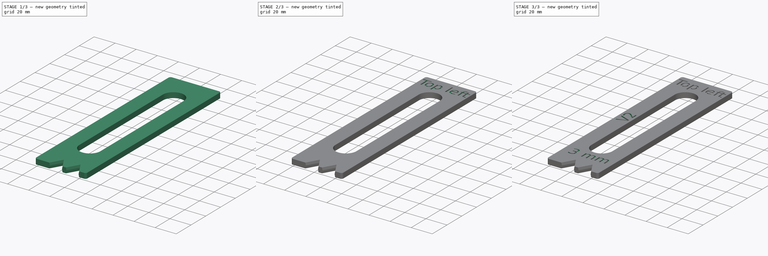
[diagram: build sequence overview — one tinted view per stage of 3, left to right]
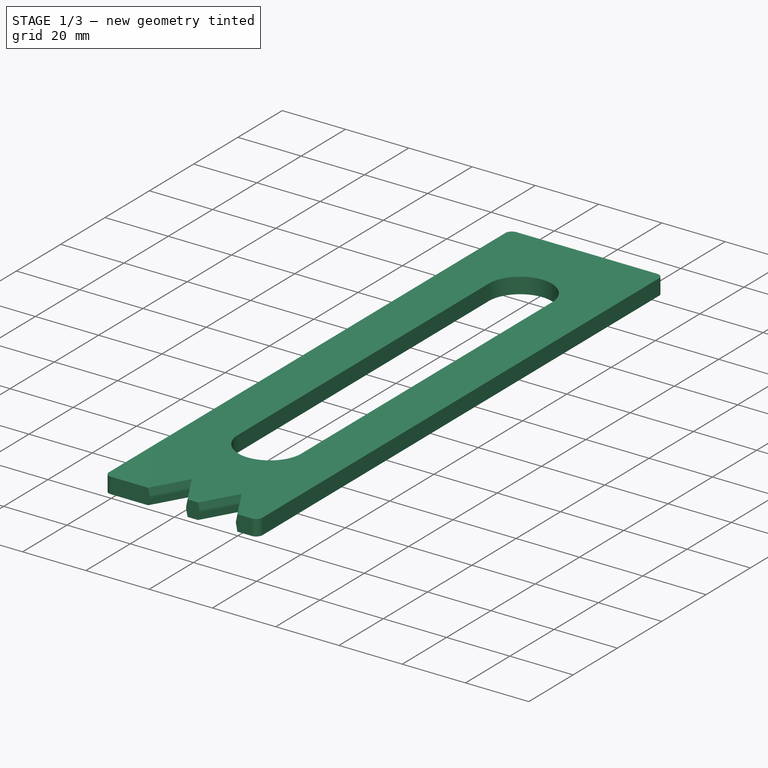
[diagram: stage 1 of 3 — iso view after this stage's code; geometry added in this stage tinted green]
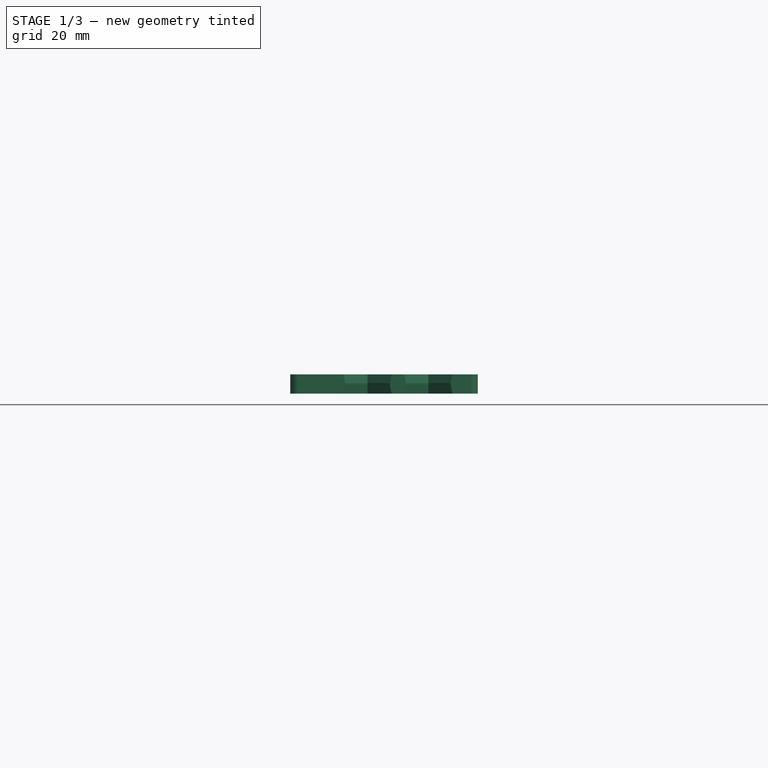
[diagram: stage 1 of 3 — front view after this stage's code; geometry added in this stage tinted green]
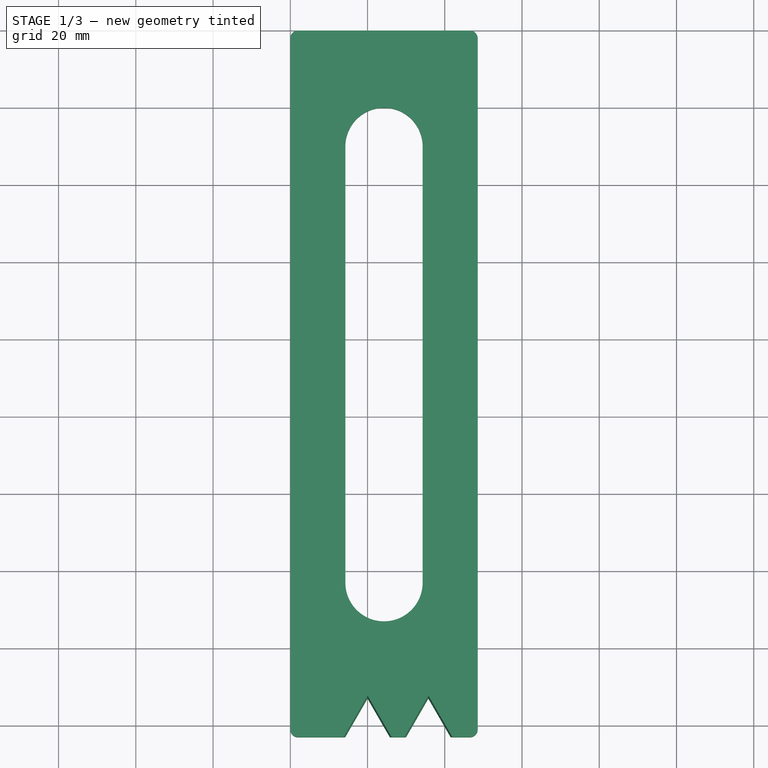
[diagram: stage 1 of 3 — top view after this stage's code; geometry added in this stage tinted green]
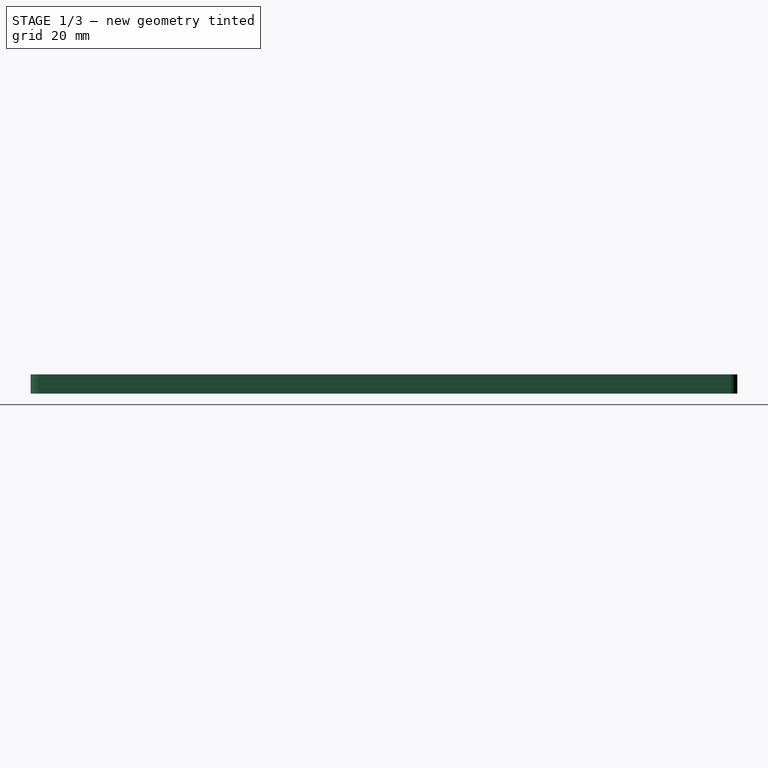
[diagram: stage 1 of 3 — right view after this stage's code; geometry added in this stage tinted green]
FCSTD DOCUMENT  (FreeCAD 0.19R24291 (Git))
Label: Small enclosure, 3mm mains block
License: All rights reserved
LicenseURL: http://en.wikipedia.org/wiki/All_rights_reserved
objects: Part::Part2DObjectPython×3, PartDesign::Pocket×3, Sketcher::SketchObject×1, PartDesign::Pad×1, PartDesign::Chamfer×1, PartDesign::Body×1
note: 15 computed .brp shape members not serialized (recipe doc carries the construction recipe); baked Part::Feature solids carry a one-line shape summary decoded from their .brp

FEATURE [Sketcher::SketchObject] Sketch
  FullyConstrained = true
  MapMode = 5
  Support = -> [XY_Plane]
  sketch-geometry (20):
    g0: LineSegment StartX=2 StartY=0 StartZ=0 EndX=46.5235 EndY=0 EndZ=0
    g1: LineSegment StartX=48.5235 StartY=-2 StartZ=0 EndX=48.5235 EndY=-181 EndZ=0
    g2: LineSegment StartX=0 StartY=-2 StartZ=0 EndX=0 EndY=-181 EndZ=0
    g3: LineSegment StartX=2 StartY=-183 StartZ=0 EndX=14.2265 EndY=-183 EndZ=0
    g4: LineSegment StartX=14.2265 StartY=-183 StartZ=0 EndX=20 EndY=-173 EndZ=0
    g5: LineSegment StartX=20 StartY=-173 StartZ=0 EndX=25.7735 EndY=-183 EndZ=0
    g6: LineSegment StartX=25.7735 StartY=-183 StartZ=0 EndX=29.9765 EndY=-183 EndZ=0
    g7: LineSegment StartX=29.9765 StartY=-183 StartZ=0 EndX=35.75 EndY=-173 EndZ=0
    g8: LineSegment StartX=35.75 StartY=-173 StartZ=0 EndX=41.5235 EndY=-183 EndZ=0
    g9: LineSegment StartX=41.5235 StartY=-183 StartZ=0 EndX=46.5235 EndY=-183 EndZ=0
    g10: ArcOfCircle CenterX=2 CenterY=-2 CenterZ=0 NormalX=0 NormalY=0 NormalZ=1 AngleXU=0 Radius=2 StartAngle=1.5708 EndAngle=3.14159
    g11: ArcOfCircle CenterX=46.5235 CenterY=-2 CenterZ=0 NormalX=0 NormalY=0 NormalZ=1 AngleXU=0 Radius=2 StartAngle=0 EndAngle=1.5708
    g12: ArcOfCircle CenterX=46.5235 CenterY=-181 CenterZ=0 NormalX=0 NormalY=0 NormalZ=1 AngleXU=0 Radius=2 StartAngle=4.71239 EndAngle=6.28319
    g13: LineSegment StartX=24.2618 StartY=0 StartZ=0 EndX=24.2618 EndY=-183 EndZ=0
    g14: GeomPoint X=48.5235 Y=0 Z=0
    g15: ArcOfCircle CenterX=24.2618 CenterY=-30 CenterZ=0 NormalX=0 NormalY=0 NormalZ=1 AngleXU=0 Radius=10 StartAngle=0 EndAngle=3.14159
    g16: ArcOfCircle CenterX=24.2618 CenterY=-143 CenterZ=0 NormalX=0 NormalY=0 NormalZ=1 AngleXU=0 Radius=10 StartAngle=3.14159 EndAngle=6.28319
    g17: LineSegment StartX=14.2618 StartY=-30 StartZ=0 EndX=14.2618 EndY=-143 EndZ=0
    g18: LineSegment StartX=34.2618 StartY=-30 StartZ=0 EndX=34.2618 EndY=-143 EndZ=0
    g19: ArcOfCircle CenterX=2 CenterY=-181 CenterZ=0 NormalX=0 NormalY=0 NormalZ=1 AngleXU=0 Radius=2 StartAngle=3.14159 EndAngle=4.71239
  constraints (53):
    c: Horizontal(g0)
    c: Vertical(g1)
    c: Vertical(g2)
    c: Horizontal(g3)
    c: Coincident(g4,g3)
    c: Coincident(g5,g4)
    c: Coincident(g6,g5)
    c: Horizontal(g6)
    c: Coincident(g8,g7)
    c: Coincident(g9,g8)
    c: Horizontal(g9)
    c: Tangent(g0,g10) = 1.5708
    c: Tangent(g2,g10) = -1.5708
    c: Horizontal(g-1,g0)
    c: Vertical(g-1,g2)
    c: Horizontal(g3,g5)
    c: Horizontal(g8,g6)
    c: Coincident(g7,g6)
    c: Equal(g4,g5)
    c: Equal(g5,g7)
    c: Equal(g7,g8)
    c: Angle(g4,g5) = 1.0472
    c: Angle(g7,g8) = 1.0472
    c: DistanceY(g3,g4) = 10
    c: DistanceY(g4,g-1) = 173
    c: DistanceX(g4,g7) = 15.75
    c: Tangent(g0,g11) = 1.5708
    c: Tangent(g1,g11) = 1.5708
    c: Tangent(g1,g12) = 1.5708
    c: Tangent(g9,g12) = -1.5708
    c: Radius(g11) = 2
    c: Radius(g12) = 2
    c: Vertical(g13)
    c: Horizontal(g13,g-1)
    c: Vertical(g14,g1)
    c: Symmetric(g-1,g14,g13)
    c: Tangent(g15,g18) = 1.5708
    c: Tangent(g15,g17) = -1.5708
    c: Tangent(g17,g16) = -1.5708
    c: Tangent(g18,g16) = 1.5708
    c: Vertical(g17)
    c: Equal(g15,g16)
    c: PointOnObject(g15,g13)
    c: DistanceX(g15,g15) = 20
    c: DistanceY(g15,g13) = 30
    c: DistanceY(g4,g16) = 30
    c: Distance(g9) = 5
    c: Equal(g11,g10)
    c: Tangent(g2,g19) = -1.5708
    c: Tangent(g3,g19) = -1.5708
    c: Equal(g12,g19)
    c: DistanceX(g-1,g4) = 20
    c: Horizontal(g13,g5)
FEATURE [PartDesign::Pad] Pad
  Direction = (1,1,1)
  Length = 5
  Length2 = 100
  Profile = -> Sketch
  Type = 0
FEATURE [PartDesign::Chamfer] Chamfer
  Angle = 80
  Base = -> Pad [Edge34,Edge31,Edge25,Edge22,Edge21,Edge24,Edge30,Edge33]
  BaseFeature = -> Pad
  ChamferType = 2
  FlipDirection = true
  Size = 0.4
  Size2 = 1
  SupportTransform = false
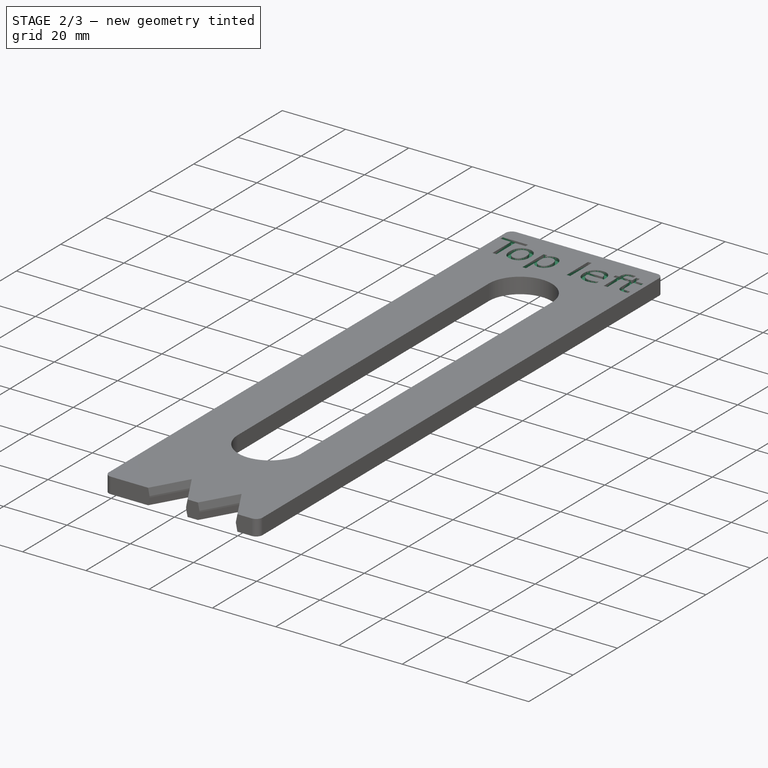
[diagram: stage 2 of 3 — iso view after this stage's code; geometry added in this stage tinted green]
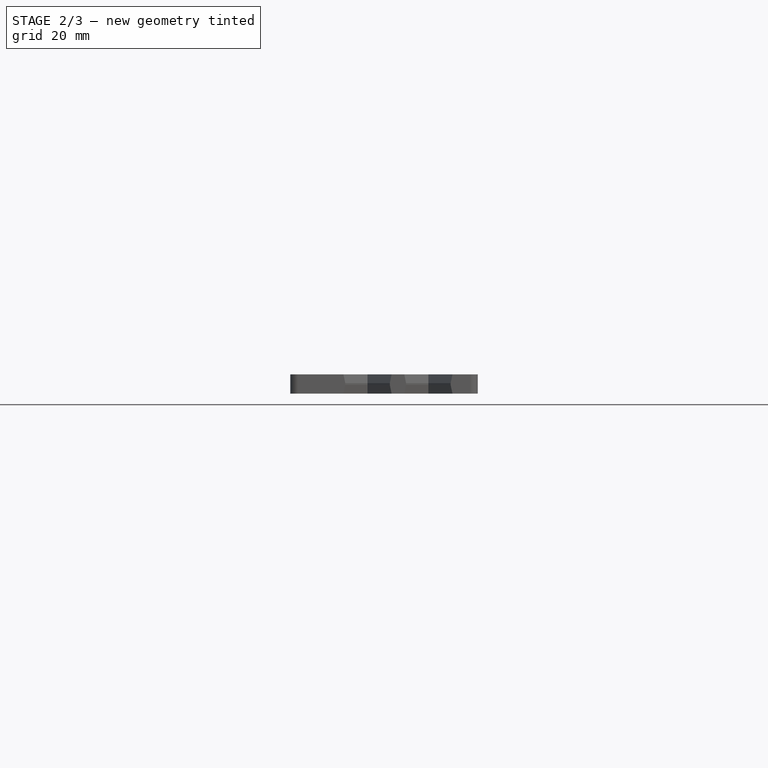
[diagram: stage 2 of 3 — front view after this stage's code; geometry added in this stage tinted green]
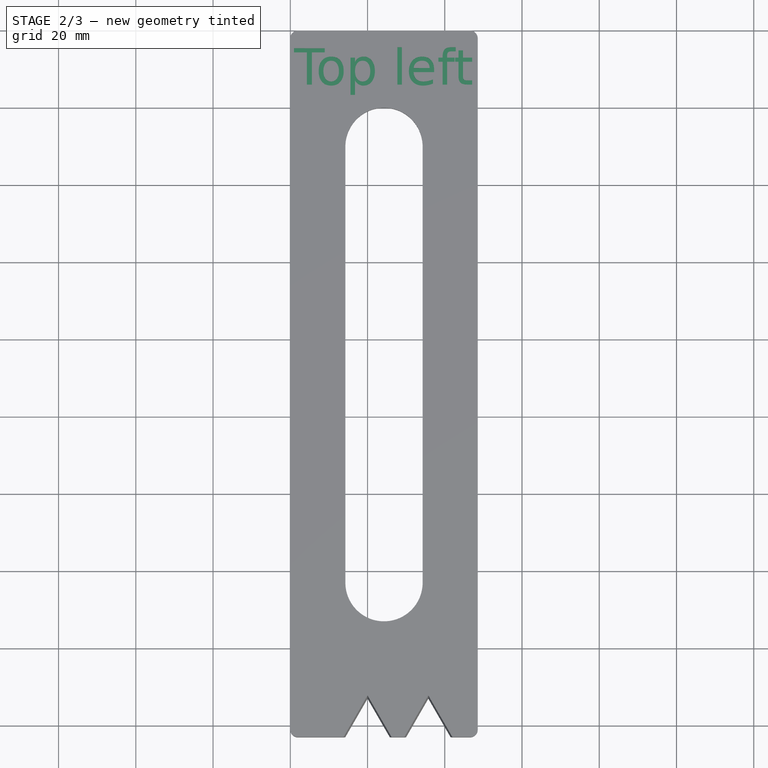
[diagram: stage 2 of 3 — top view after this stage's code; geometry added in this stage tinted green]
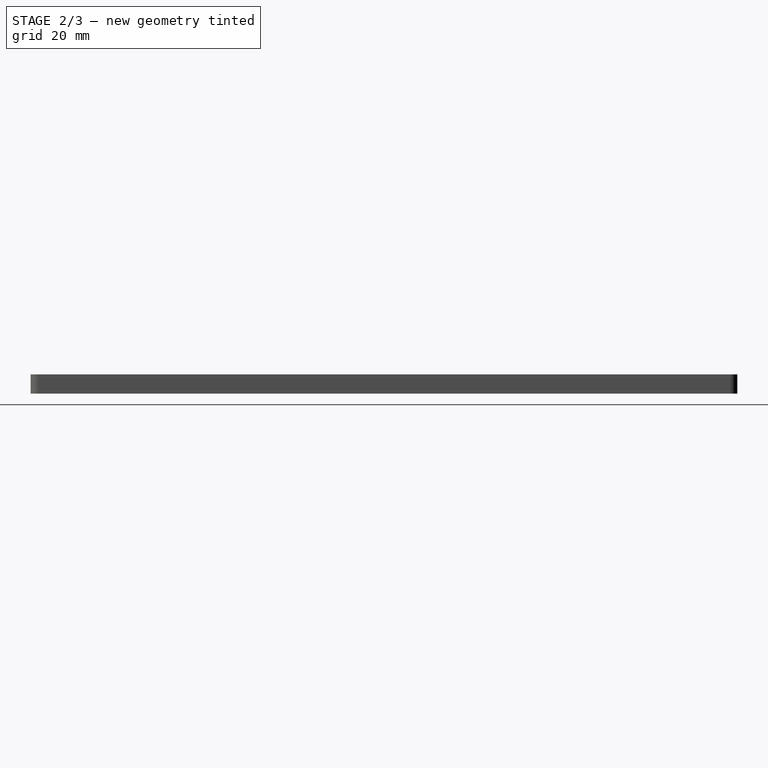
[diagram: stage 2 of 3 — right view after this stage's code; geometry added in this stage tinted green]
FEATURE [Part::Part2DObjectPython] ShapeString  # Draft 2D object (typed FeaturePython)
  FontFile = <path>
  Placement = pos=(1,-14,5) rot=(0,0,1;0rad)
  Size = 10
  String = Top left
  Tracking = 0
FEATURE [Part::Part2DObjectPython] ShapeString001  # Draft 2D object (typed FeaturePython)
  FontFile = <path>
  Placement = pos=(6,-165,5) rot=(0,0,1;0rad)
  Size = 10
  String = 3 mm
  Tracking = 0
FEATURE [PartDesign::Pocket] Pocket
  BaseFeature = -> Chamfer
  Length = 1
  Length2 = 100
  Profile = -> ShapeString
  Type = 0
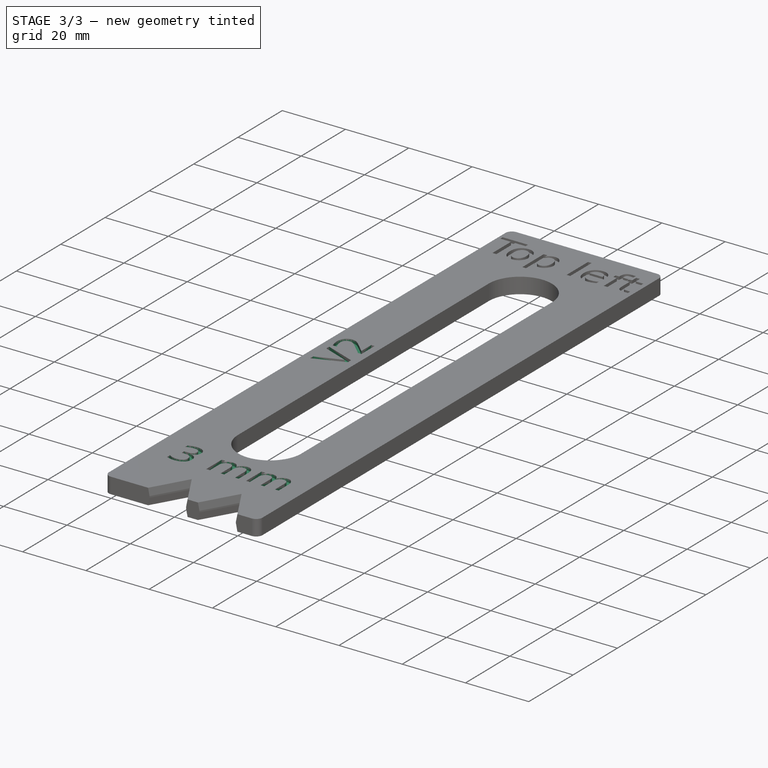
[diagram: stage 3 of 3 — iso view after this stage's code; geometry added in this stage tinted green]
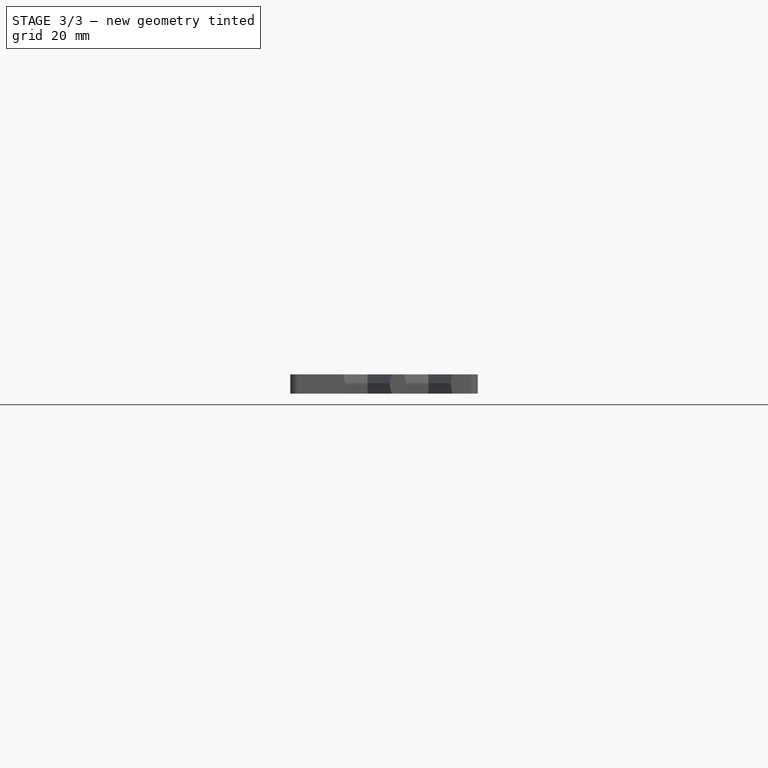
[diagram: stage 3 of 3 — front view after this stage's code; geometry added in this stage tinted green]
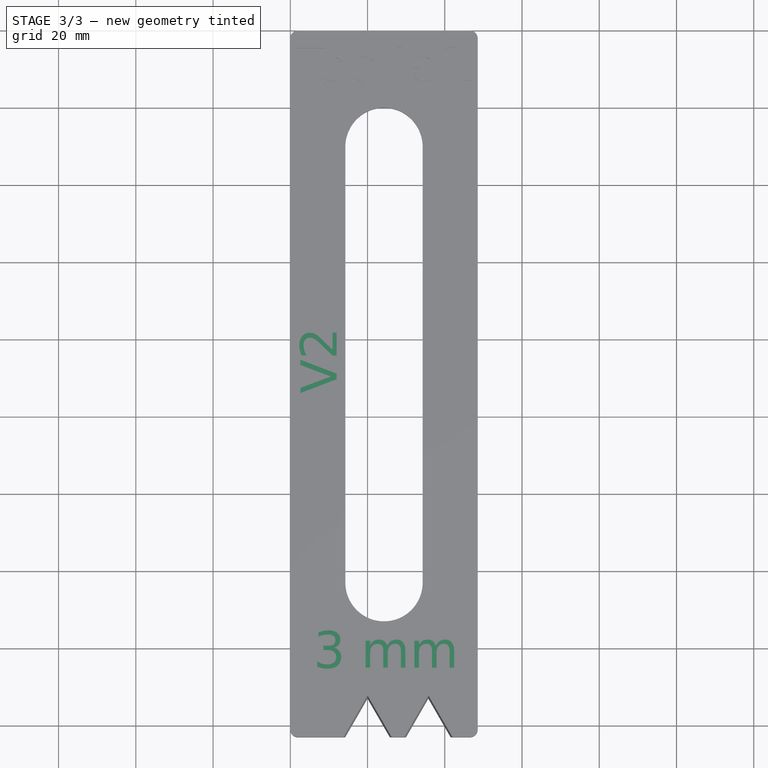
[diagram: stage 3 of 3 — top view after this stage's code; geometry added in this stage tinted green]
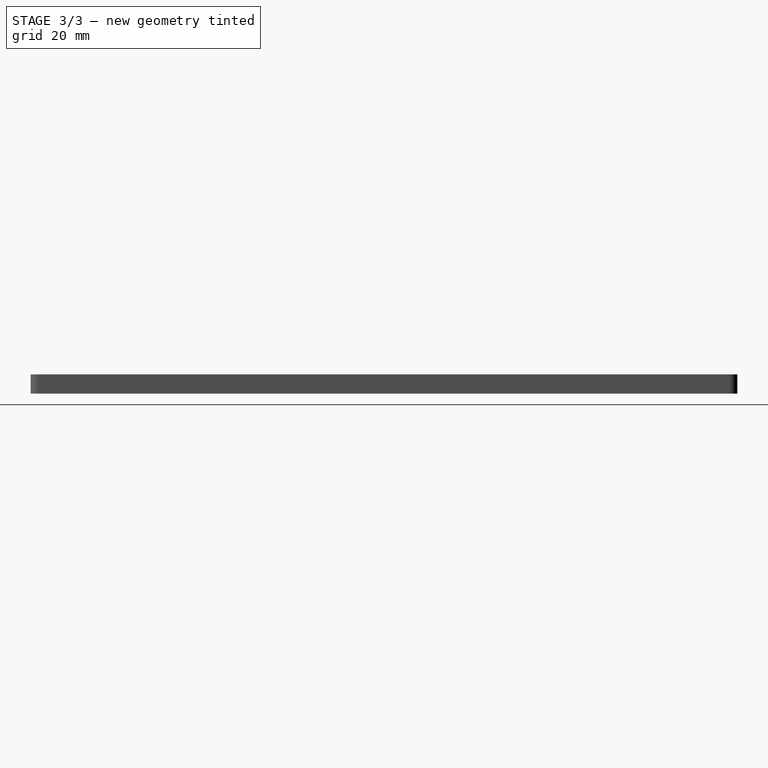
[diagram: stage 3 of 3 — right view after this stage's code; geometry added in this stage tinted green]
FEATURE [PartDesign::Pocket] Pocket001
  BaseFeature = -> Pocket
  Length = 1
  Length2 = 100
  Profile = -> ShapeString001
  Type = 0
FEATURE [Part::Part2DObjectPython] ShapeString002  # Draft 2D object (typed FeaturePython)
  FontFile = <path>
  Placement = pos=(12,-94,5) rot=(0,0,1;1.5708rad)
  Size = 10
  String = V2
  Tracking = 0
FEATURE [PartDesign::Pocket] Pocket002
  BaseFeature = -> Pocket001
  Length = 1
  Length2 = 100
  Profile = -> ShapeString002
  Type = 0
FEATURE [PartDesign::Body] Body
  Group = -> [Sketch,Pad,Chamfer,ShapeString,ShapeString001,Pocket,Pocket001,ShapeString002,Pocket002]
  Origin = -> Origin
  Tip = -> Pocket002
note: 3 file-system paths scrubbed to <path> (originals preserved in the JSON sidecar)
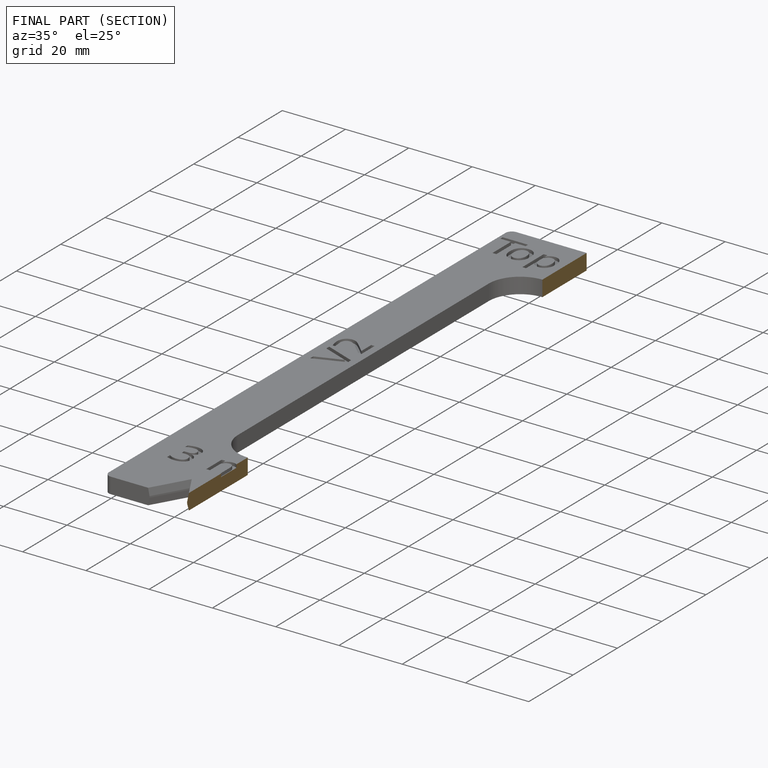
[diagram: finished part — half-section view (interior)]
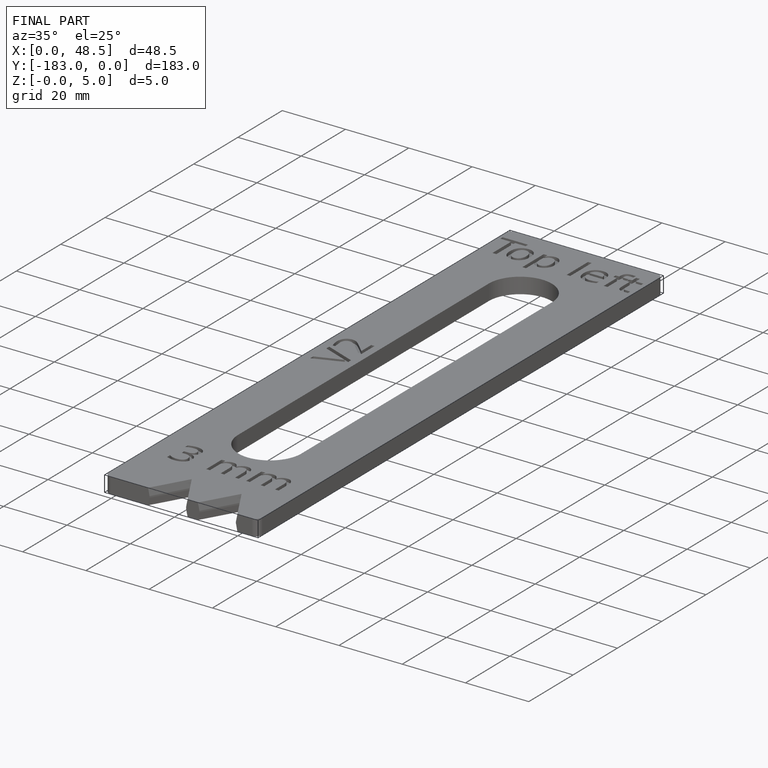
[diagram: finished part — iso view with bounding-box wireframe]
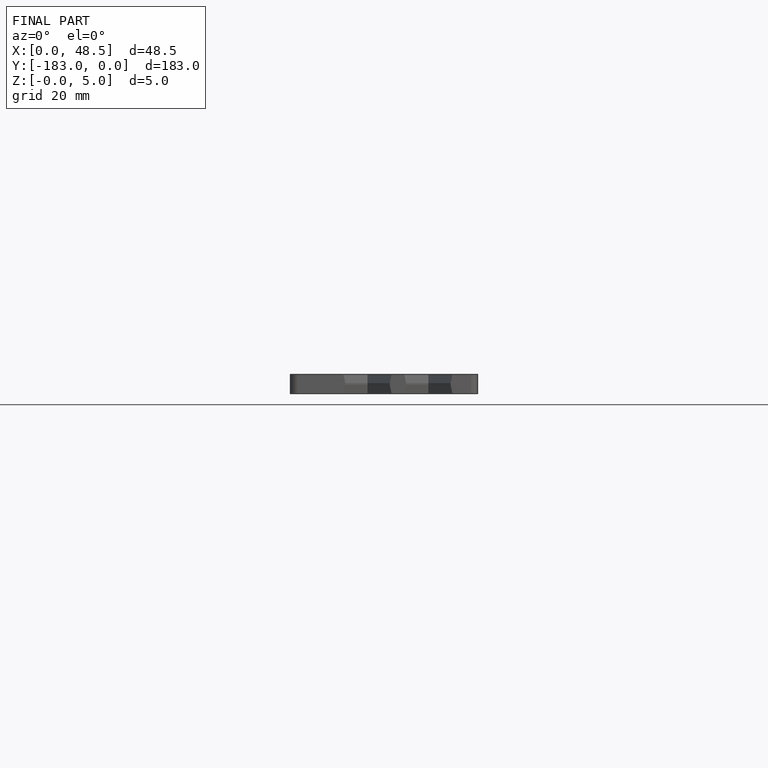
[diagram: finished part — front view with bounding-box wireframe]
